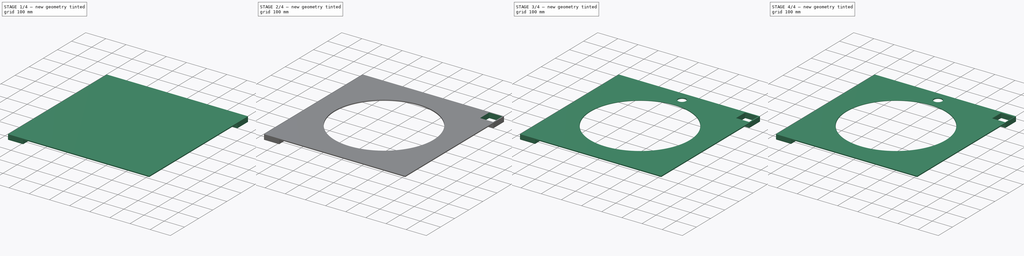
[diagram: build sequence overview — one tinted view per stage of 4, left to right]
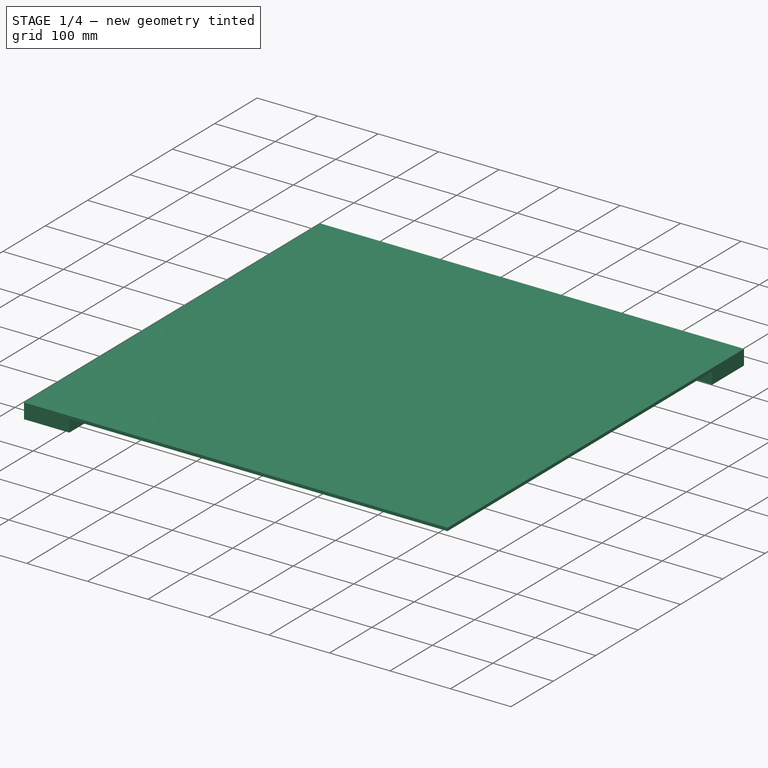
[diagram: stage 1 of 4 — iso view after this stage's code; geometry added in this stage tinted green]
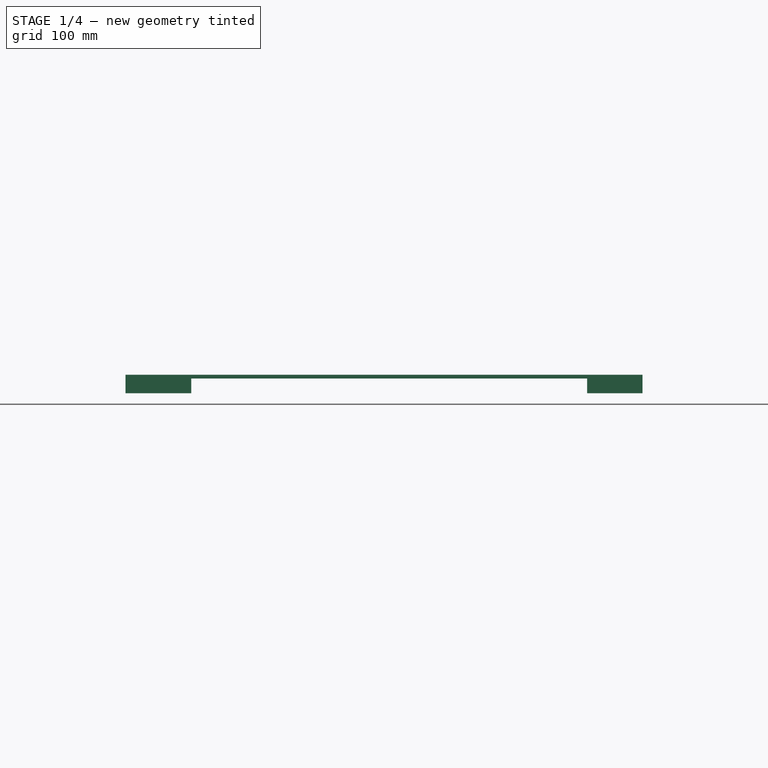
[diagram: stage 1 of 4 — front view after this stage's code; geometry added in this stage tinted green]
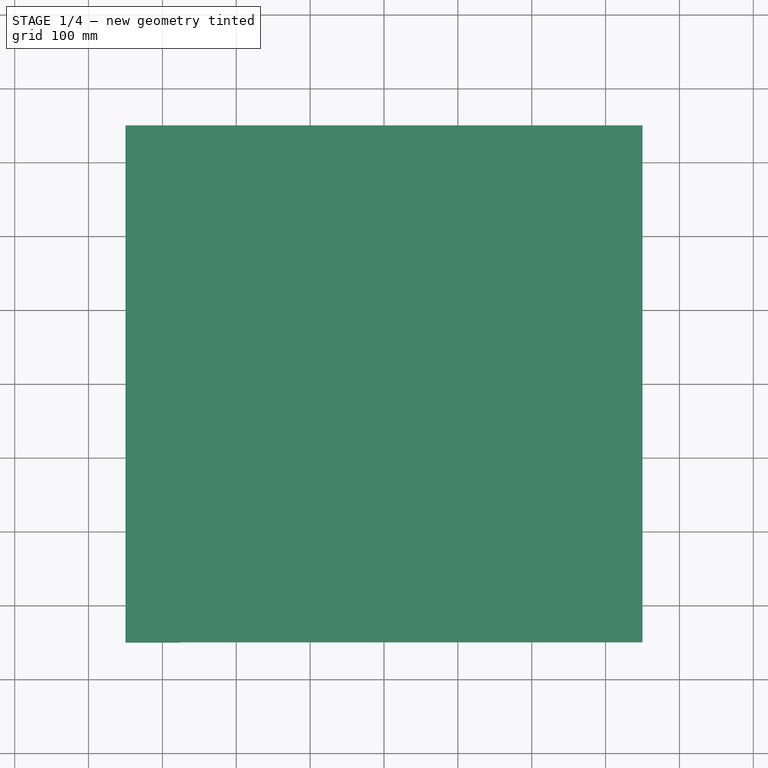
[diagram: stage 1 of 4 — top view after this stage's code; geometry added in this stage tinted green]
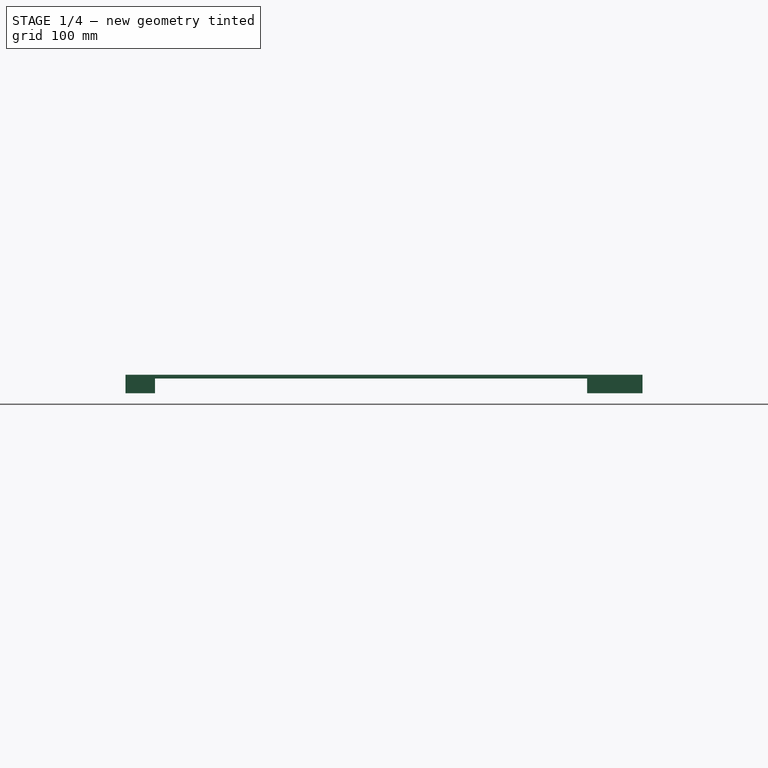
[diagram: stage 1 of 4 — right view after this stage's code; geometry added in this stage tinted green]
FCSTD DOCUMENT  (FreeCAD 0.18R16131 (Git))
Label: Couvercle
License: All rights reserved
LicenseURL: http://en.wikipedia.org/wiki/All_rights_reserved
objects: Sketcher::SketchObject×5, PartDesign::Fillet×4, PartDesign::Pocket×3, PartDesign::Pad×2, PartDesign::Body×1
note: 20 computed .brp shape members not serialized (recipe doc carries the construction recipe); baked Part::Feature solids carry a one-line shape summary decoded from their .brp

FEATURE [Sketcher::SketchObject] Sketch
  MapMode = 5
  Support = -> [XY_Plane]
  sketch-geometry (6):
    g0: LineSegment StartX=-350 StartY=350 StartZ=0 EndX=350 EndY=350 EndZ=0
    g1: LineSegment StartX=350 StartY=350 StartZ=0 EndX=350 EndY=-350 EndZ=0
    g2: LineSegment StartX=350 StartY=-350 StartZ=0 EndX=-350 EndY=-350 EndZ=0
    g3: LineSegment StartX=-350 StartY=-350 StartZ=0 EndX=-350 EndY=350 EndZ=0
    g4: LineSegment [constr] StartX=350 StartY=350 StartZ=0 EndX=-350 EndY=-350 EndZ=0
    g5: LineSegment [constr] StartX=-350 StartY=350 StartZ=0 EndX=350 EndY=-350 EndZ=0
  constraints (16):
    c: Coincident(g0,g1)
    c: Coincident(g1,g2)
    c: Coincident(g2,g3)
    c: Coincident(g3,g0)
    c: Horizontal(g0)
    c: Horizontal(g2)
    c: Vertical(g1)
    c: Vertical(g3)
    c: Coincident(g5,g0)
    c: Coincident(g4,g0)
    c: Coincident(g5,g1)
    c: Coincident(g4,g2)
    c: PointOnObject(g-1,g4)
    c: PointOnObject(g-1,g5)
    c: DistanceX(g0,g0) = 700
    c: DistanceY(g1,g1) = 700
FEATURE [PartDesign::Pad] Pad
  Length = 5
  Length2 = 100
  Profile = -> Sketch
  Type = 0
FEATURE [Sketcher::SketchObject] Sketch001
  ExternalGeometry = -> [Pad]
  MapMode = 5
  Placement = pos=(0,0,0) rot=(1,0,0;3.14159rad)
  Support = -> [Pad]
  sketch-geometry (12):
    g0: LineSegment StartX=-350 StartY=350 StartZ=0 EndX=-275 EndY=350 EndZ=0
    g1: LineSegment StartX=-275 StartY=350 StartZ=0 EndX=-275 EndY=310 EndZ=0
    g2: LineSegment StartX=-275 StartY=310 StartZ=0 EndX=-350 EndY=310 EndZ=0
    g3: LineSegment StartX=-350 StartY=310 StartZ=0 EndX=-350 EndY=350 EndZ=0
    g4: LineSegment StartX=-350 StartY=-350 StartZ=0 EndX=-261 EndY=-350 EndZ=0
    g5: LineSegment StartX=-261 StartY=-350 StartZ=0 EndX=-261 EndY=-291.8 EndZ=0
    g6: LineSegment StartX=-261 StartY=-291.8 StartZ=0 EndX=-350 EndY=-291.8 EndZ=0
    g7: LineSegment StartX=-350 StartY=-291.8 StartZ=0 EndX=-350 EndY=-350 EndZ=0
    g8: LineSegment StartX=275 StartY=-275 StartZ=0 EndX=350 EndY=-275 EndZ=0
    g9: LineSegment StartX=350 StartY=-275 StartZ=0 EndX=350 EndY=-350 EndZ=0
    g10: LineSegment StartX=350 StartY=-350 StartZ=0 EndX=275 EndY=-350 EndZ=0
    g11: LineSegment StartX=275 StartY=-350 StartZ=0 EndX=275 EndY=-275 EndZ=0
  constraints (33):
    c: Coincident(g0,g1)
    c: Coincident(g1,g2)
    c: Coincident(g2,g3)
    c: Coincident(g3,g0)
    c: Horizontal(g0)
    c: Horizontal(g2)
    c: Vertical(g1)
    c: Vertical(g3)
    c: Coincident(g0,g-4)
    c: DistanceX(g0,g0) = 75
    c: DistanceY(g1,g1) = 40
    c: Coincident(g4,g5)
    c: Coincident(g5,g6)
    c: Coincident(g6,g7)
    c: Coincident(g7,g4)
    c: Horizontal(g4)
    c: Horizontal(g6)
    c: Vertical(g5)
    c: Vertical(g7)
    c: Coincident(g4,g-5)
    c: DistanceX(g6,g6) = 89
    c: DistanceY(g5,g5) = 58.2
    c: Coincident(g8,g9)
    c: Coincident(g9,g10)
    c: Coincident(g10,g11)
    c: Coincident(g11,g8)
    c: Horizontal(g8)
    c: Horizontal(g10)
    c: Vertical(g9)
    c: Vertical(g11)
    c: Coincident(g9,g-5)
    c: DistanceX(g8,g8) = 75
    c: DistanceY(g11,g11) = 75
FEATURE [PartDesign::Pad] Pad001
  BaseFeature = -> Pad
  Length = 20
  Length2 = 100
  Profile = -> Sketch001
  Type = 0
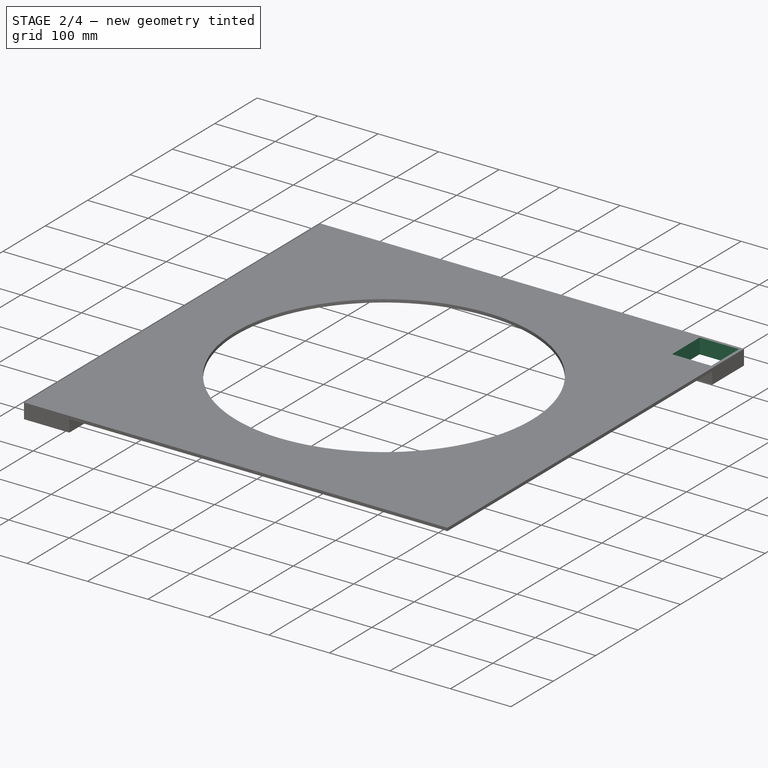
[diagram: stage 2 of 4 — iso view after this stage's code; geometry added in this stage tinted green]
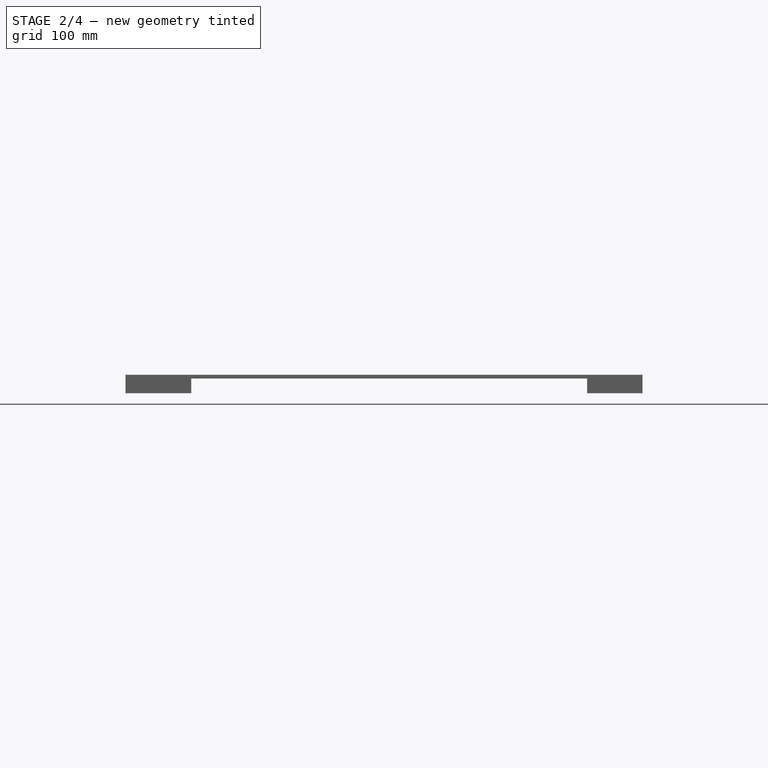
[diagram: stage 2 of 4 — front view after this stage's code; geometry added in this stage tinted green]
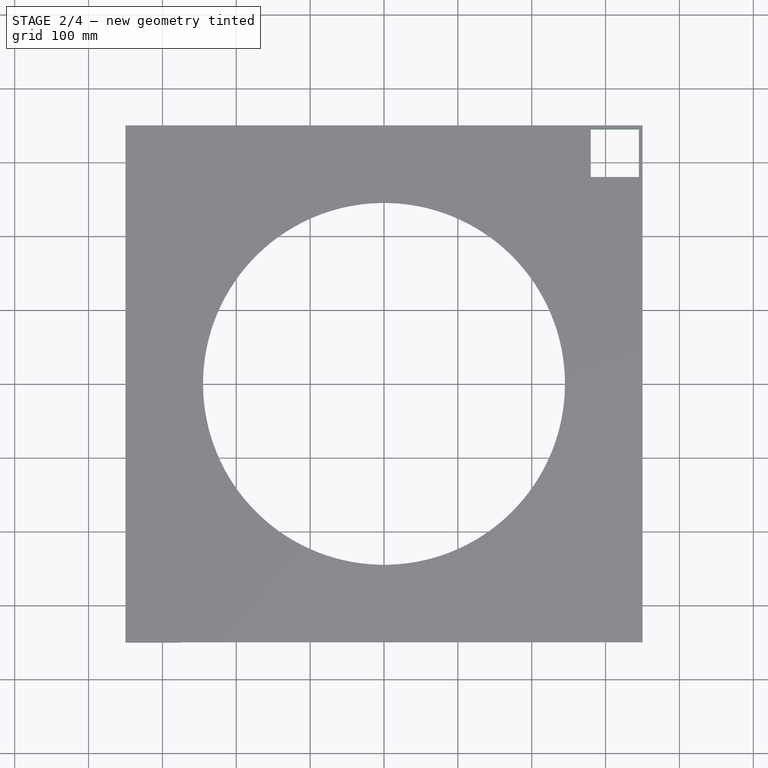
[diagram: stage 2 of 4 — top view after this stage's code; geometry added in this stage tinted green]
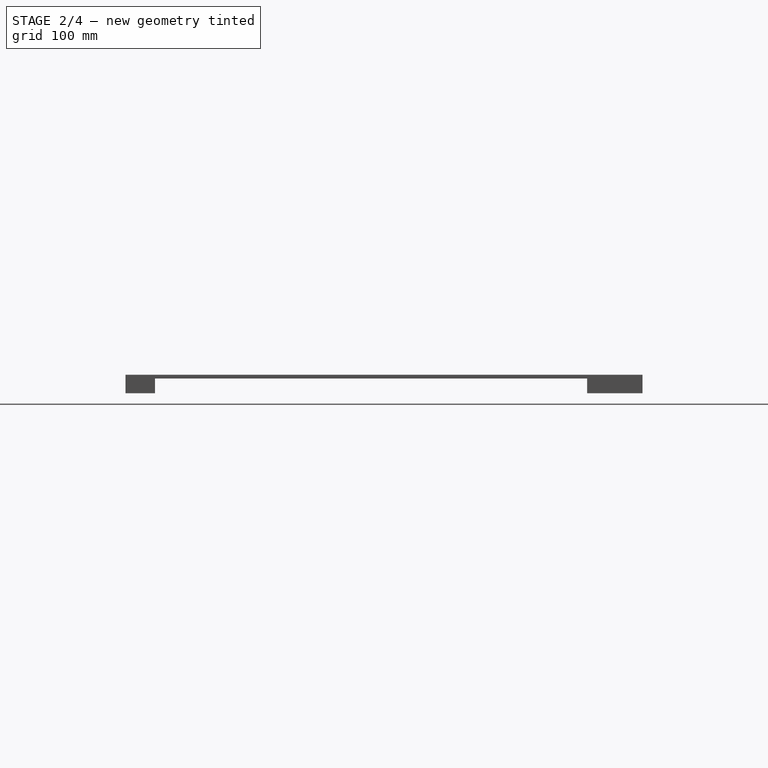
[diagram: stage 2 of 4 — right view after this stage's code; geometry added in this stage tinted green]
FEATURE [Sketcher::SketchObject] Sketch002
  MapMode = 5
  Placement = pos=(0,0,5) rot=(0,0,1;0rad)
  Support = -> [Pad001]
  sketch-geometry (1):
    g0: Circle CenterX=0 CenterY=0 CenterZ=0 NormalX=0 NormalY=0 NormalZ=1 AngleXU=0 Radius=245
  constraints (2):
    c: Coincident(g0,g-1)
    c: Radius(g0) = 245
FEATURE [PartDesign::Pocket] Pocket
  BaseFeature = -> Pad001
  Length = 5
  Length2 = 100
  Profile = -> Sketch002
  Type = 0
FEATURE [Sketcher::SketchObject] Sketch003
  ExternalGeometry = -> [Pocket]
  MapMode = 5
  Placement = pos=(0,0,-20) rot=(1,0,0;3.14159rad)
  Support = -> [Pocket]
  sketch-geometry (4):
    g0: LineSegment StartX=280 StartY=-280 StartZ=0 EndX=345 EndY=-280 EndZ=0
    g1: LineSegment StartX=345 StartY=-280 StartZ=0 EndX=345 EndY=-345 EndZ=0
    g2: LineSegment StartX=345 StartY=-345 StartZ=0 EndX=280 EndY=-345 EndZ=0
    g3: LineSegment StartX=280 StartY=-345 StartZ=0 EndX=280 EndY=-280 EndZ=0
  constraints (12):
    c: Coincident(g0,g1)
    c: Coincident(g1,g2)
    c: Coincident(g2,g3)
    c: Coincident(g3,g0)
    c: Horizontal(g0)
    c: Horizontal(g2)
    c: Vertical(g1)
    c: Vertical(g3)
    c: DistanceX(g-6,g0) = 5
    c: DistanceX(g0,g-4) = 5
    c: DistanceY(g0,g-4) = 5
    c: DistanceY(g-5,g1) = 5
FEATURE [PartDesign::Pocket] Pocket001
  BaseFeature = -> Pocket
  Length = 5
  Length2 = 100
  Profile = -> Sketch003
  Type = 1
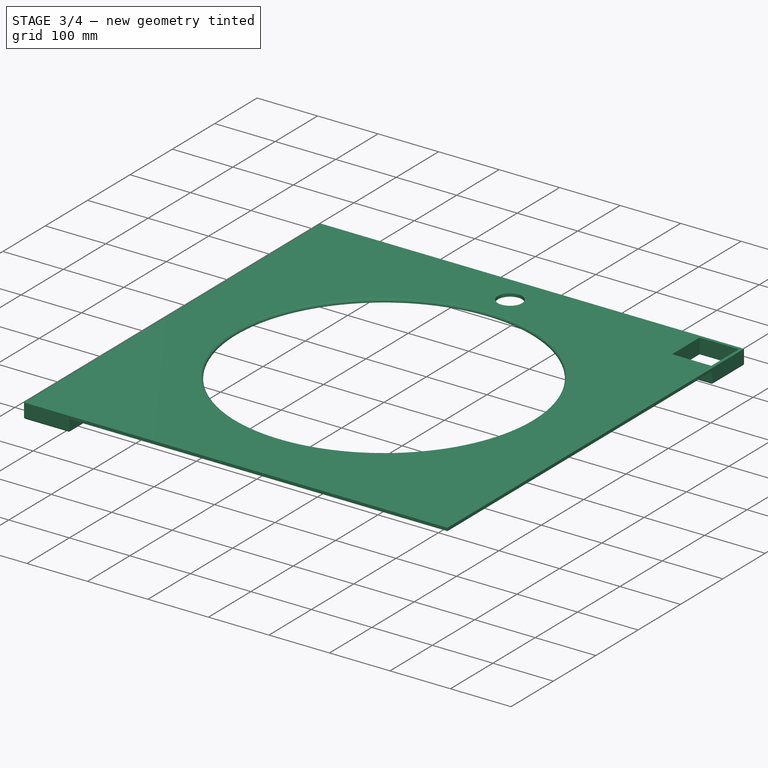
[diagram: stage 3 of 4 — iso view after this stage's code; geometry added in this stage tinted green]
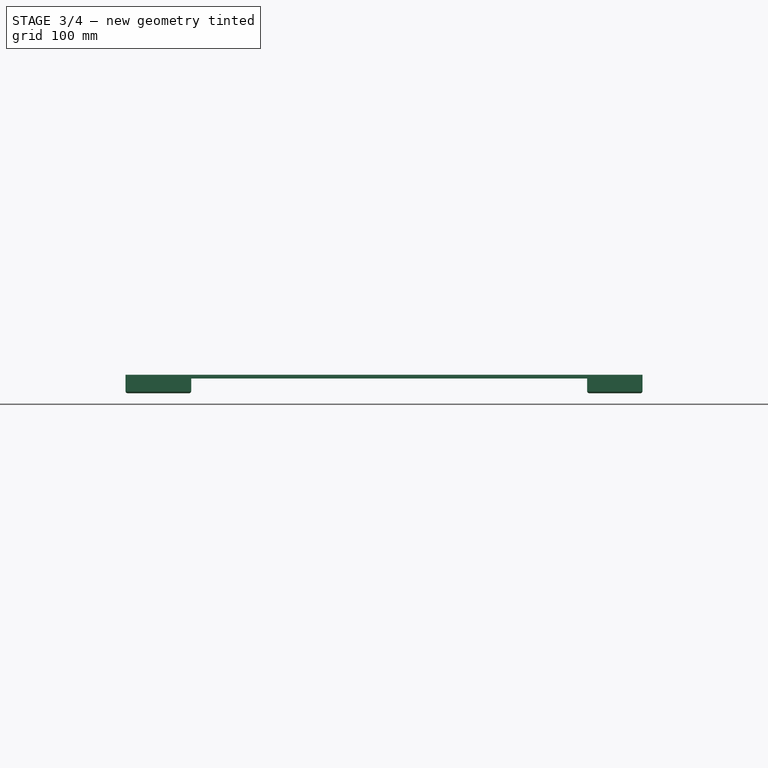
[diagram: stage 3 of 4 — front view after this stage's code; geometry added in this stage tinted green]
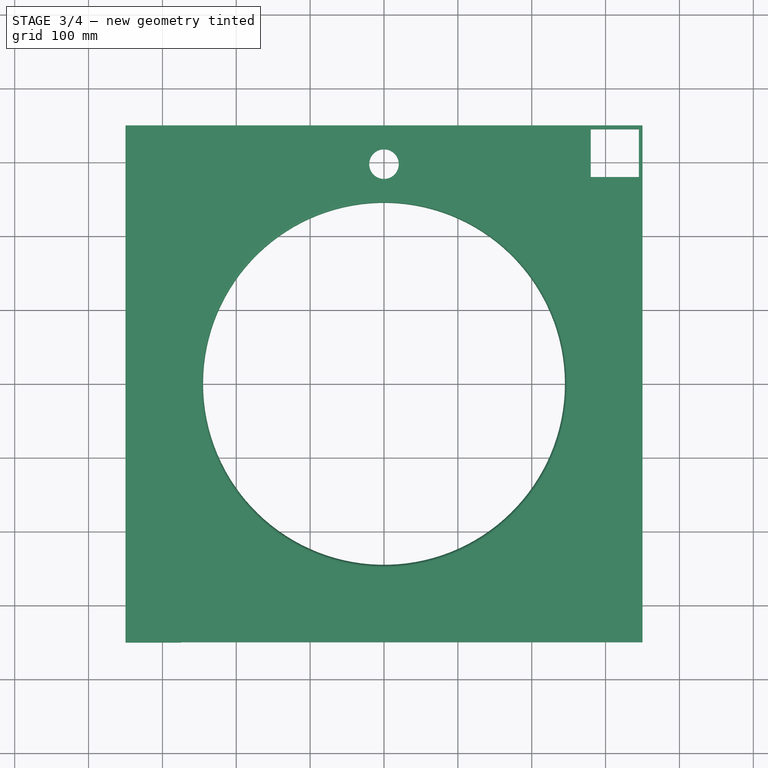
[diagram: stage 3 of 4 — top view after this stage's code; geometry added in this stage tinted green]
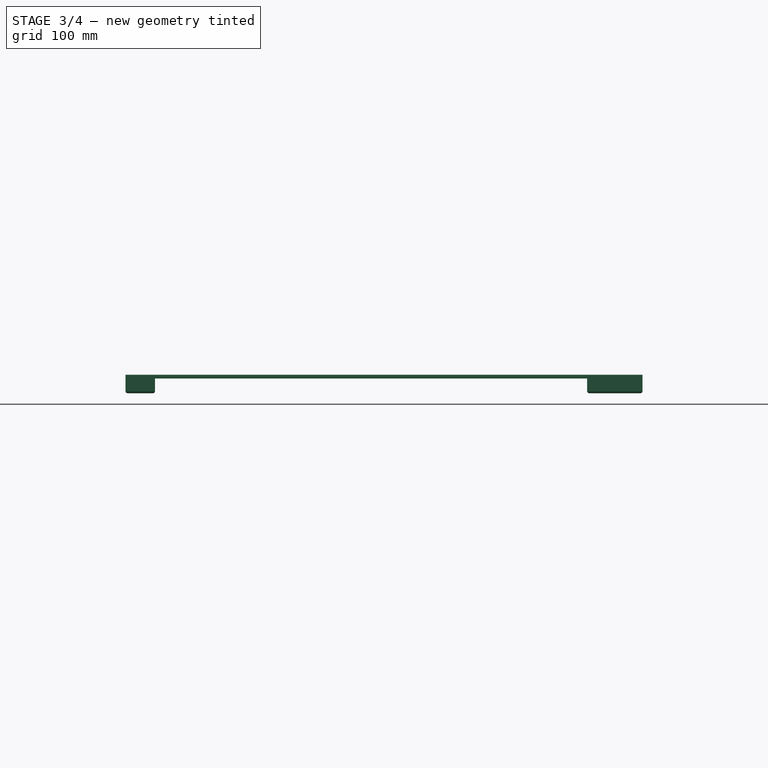
[diagram: stage 3 of 4 — right view after this stage's code; geometry added in this stage tinted green]
FEATURE [PartDesign::Fillet] Fillet
  Base = -> Pocket001 [Edge43,Edge29,Edge48,Edge49,Edge45,Edge18,Edge46,Edge41,Edge51,Edge53,Edge63,Edge39]
  BaseFeature = -> Pocket001
  Radius = 3
FEATURE [PartDesign::Fillet] Fillet001
  Base = -> Fillet [Edge44]
  BaseFeature = -> Fillet
  Radius = 4
FEATURE [Sketcher::SketchObject] Sketch004
  ExternalGeometry = -> [Fillet001]
  MapMode = 5
  Placement = pos=(0,0,5) rot=(0,0,1;0rad)
  Support = -> [Fillet001]
  sketch-geometry (2):
    g0: Circle CenterX=0 CenterY=297.5 CenterZ=0 NormalX=0 NormalY=0 NormalZ=1 AngleXU=0 Radius=20
    g1: LineSegment [constr] StartX=0 StartY=297.5 StartZ=0 EndX=0 EndY=0 EndZ=0
  constraints (5):
    c: Coincident(g-1,g1)
    c: Coincident(g1,g0)
    c: Vertical(g1)
    c: Radius(g0) = 20
    c: DistanceY(g0,g-3) = 52.5
FEATURE [PartDesign::Pocket] Pocket002
  BaseFeature = -> Fillet001
  Length = 5
  Length2 = 100
  Profile = -> Sketch004
  Type = 0
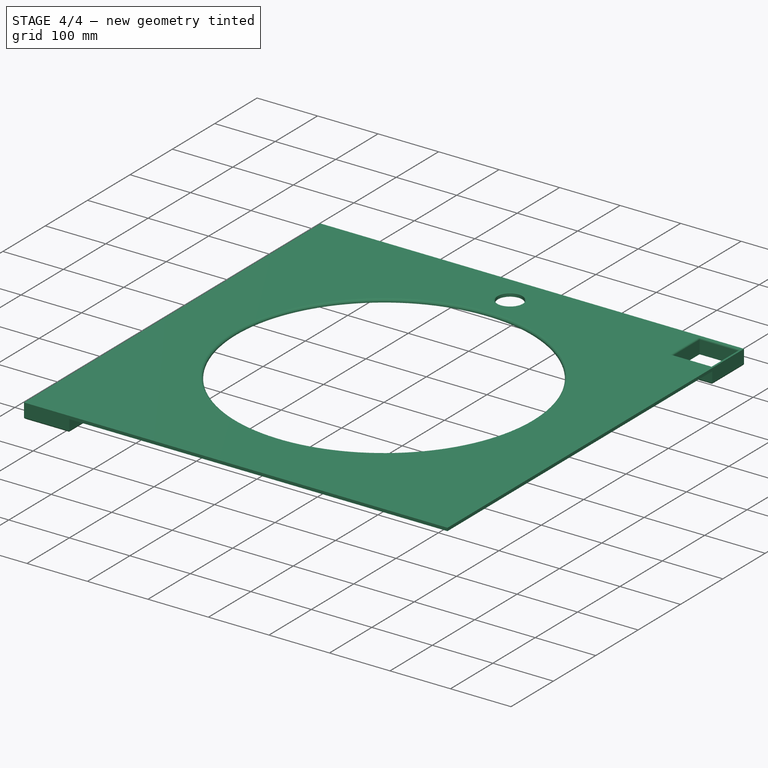
[diagram: stage 4 of 4 — iso view after this stage's code; geometry added in this stage tinted green]
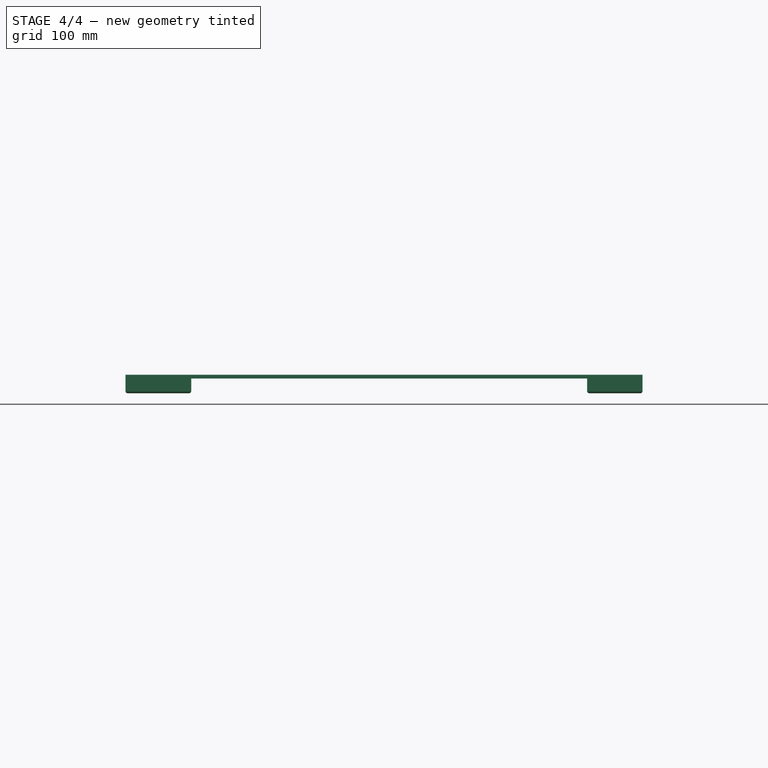
[diagram: stage 4 of 4 — front view after this stage's code; geometry added in this stage tinted green]
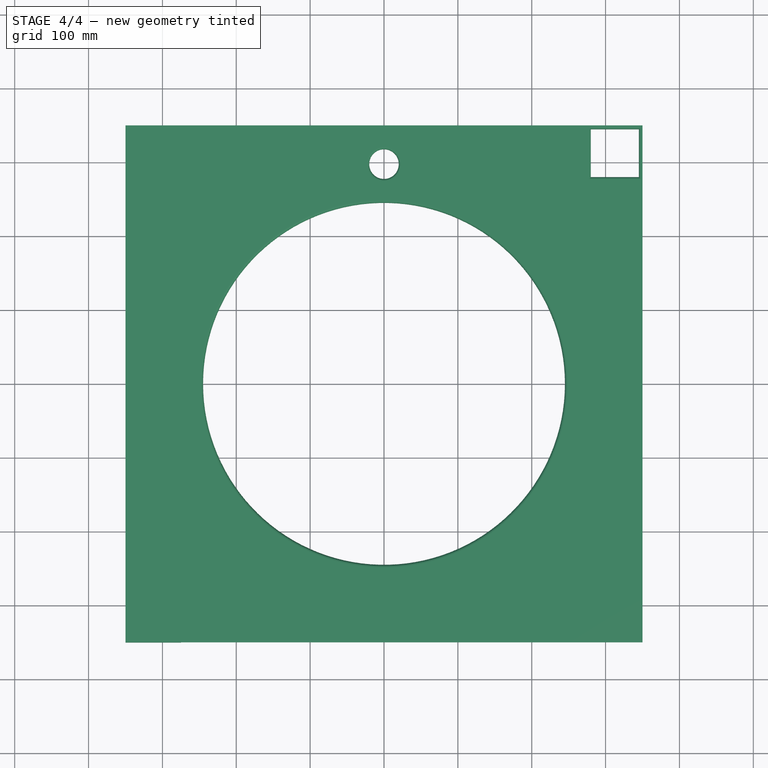
[diagram: stage 4 of 4 — top view after this stage's code; geometry added in this stage tinted green]
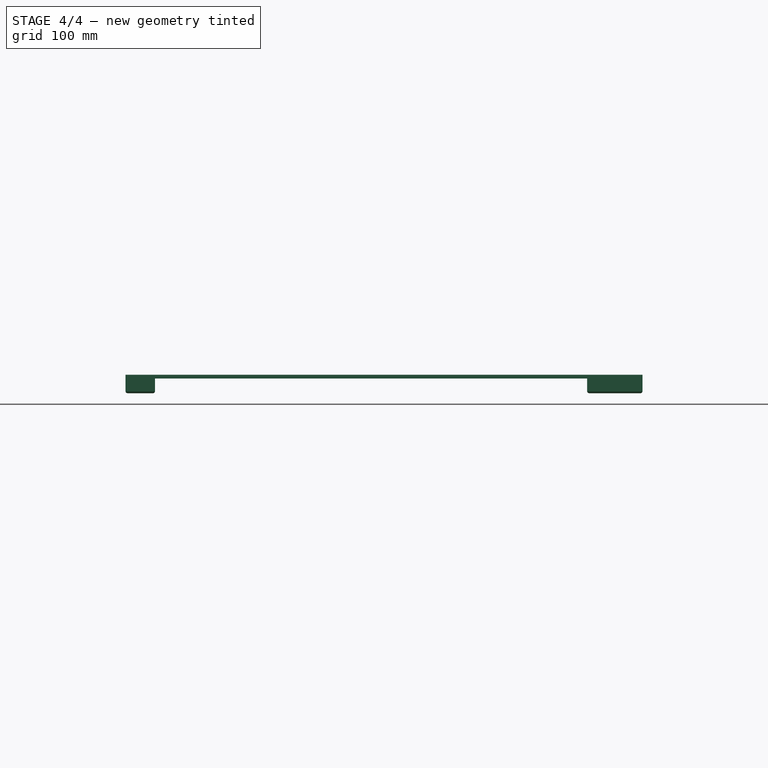
[diagram: stage 4 of 4 — right view after this stage's code; geometry added in this stage tinted green]
FEATURE [PartDesign::Fillet] Fillet002
  Base = -> Pocket002 [Edge5,Edge26]
  BaseFeature = -> Pocket002
  Radius = 3
FEATURE [PartDesign::Fillet] Fillet003
  Base = -> Fillet002 [Edge8,Edge7,Edge9,Edge10]
  BaseFeature = -> Fillet002
  Radius = 3
FEATURE [PartDesign::Body] Body
  Group = -> [Sketch,Pad,Sketch001,Pad001,Sketch002,Pocket,Sketch003,Pocket001,Fillet,Fillet001,Sketch004,Pocket002,Fillet002,Fillet003]
  Origin = -> Origin
  Tip = -> Fillet003
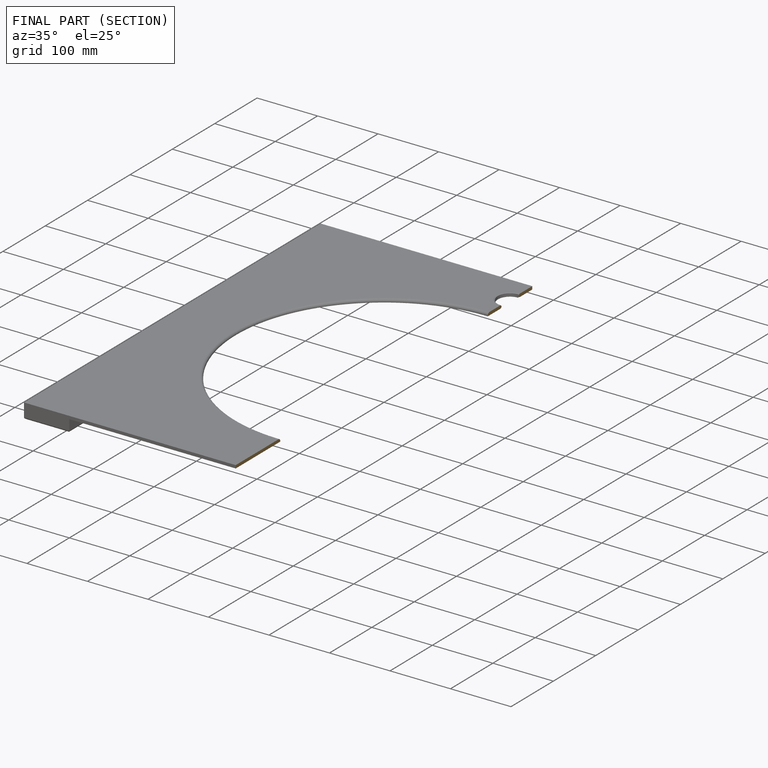
[diagram: finished part — half-section view (interior)]
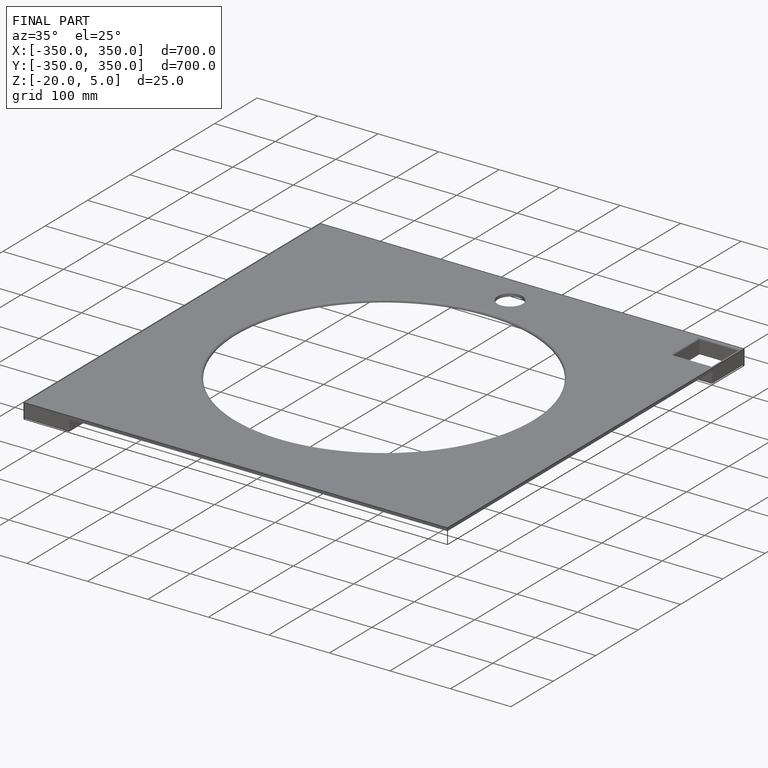
[diagram: finished part — iso view with bounding-box wireframe]
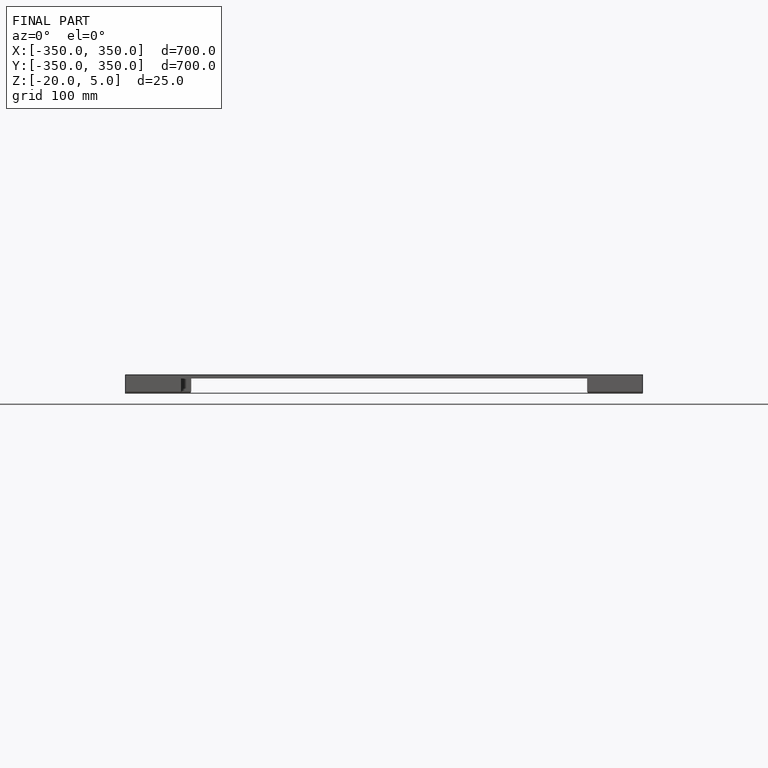
[diagram: finished part — front view with bounding-box wireframe]
